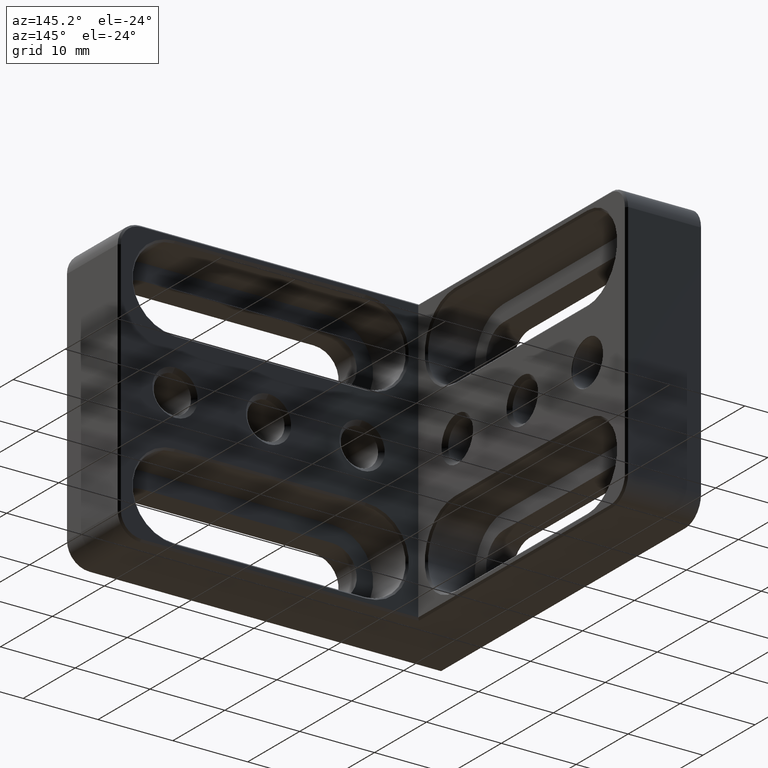
[diagram: clean part render]
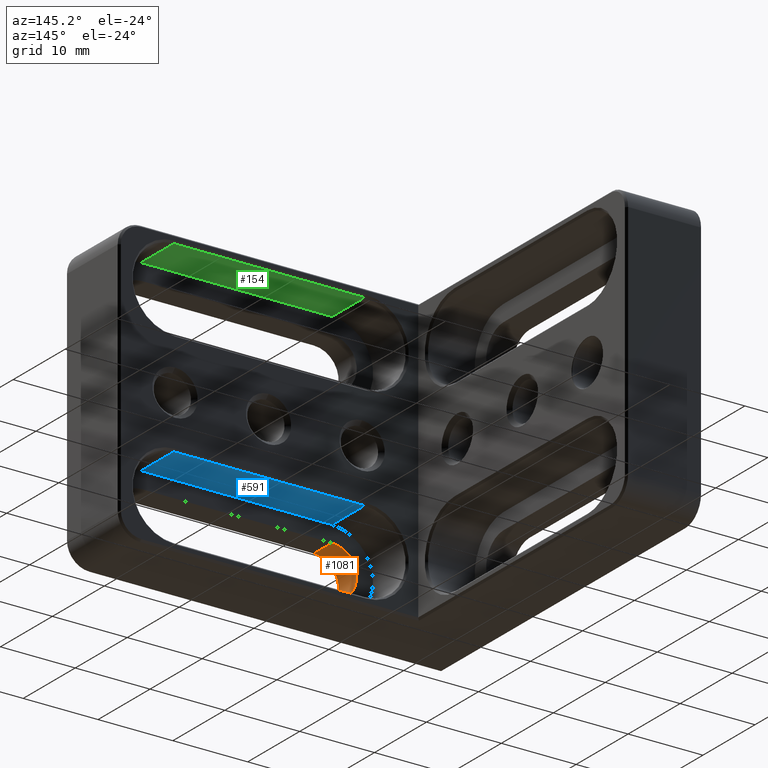
[diagram: same view with three faces highlighted in distinct colors, each labeled with its STEP entity id]
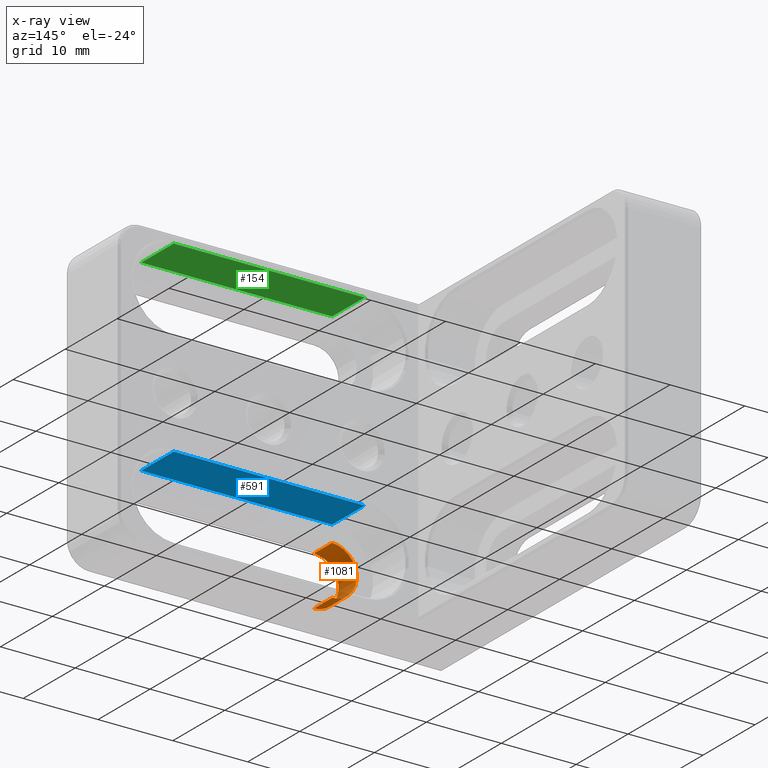
[diagram: x-ray of the same camera — body ghosted, the three highlighted faces saturated]
A machine part, auxiliary view with three faces highlighted in distinct colors.
The next image is the same camera in x-ray (body ghosted, the three faces saturated) — at least one of them is partly hidden behind the body in this view.
Their STEP definitions:

[orange] entity #1081 — the highlighted cylindrical surface (edge-blend (fillet) strip) has radius 3.3 mm, axis along (-0, 1, -0).
#16 = DIRECTION ( 'NONE',  ( -0.000000000000000000, 1.000000000000000000, -0.000000000000000000 ) ) ;
#42 = CYLINDRICAL_SURFACE ( 'NONE', #1276, 3.300000000000000711 ) ;
#242 = CARTESIAN_POINT ( 'NONE',  ( -8.000000000000000000, 3.500000000000000444, -12.50000000000000000 ) ) ;
#333 = DIRECTION ( 'NONE',  ( 0.000000000000000000, 0.000000000000000000, 1.000000000000000000 ) ) ;
#389 = VECTOR ( 'NONE', #16, 1000.000000000000000 ) ;
#417 = VERTEX_POINT ( 'NONE', #722 ) ;
#418 = CARTESIAN_POINT ( 'NONE',  ( -8.000000000000000000, 3.500000000000000444, -15.80000000000000071 ) ) ;
#439 = DIRECTION ( 'NONE',  ( -0.000000000000000000, 1.000000000000000000, -0.000000000000000000 ) ) ;
#467 = ORIENTED_EDGE ( 'NONE', *, *, #831, .F. ) ;
#522 = VERTEX_POINT ( 'NONE', #2446 ) ;
#622 = VERTEX_POINT ( 'NONE', #418 ) ;
#722 = CARTESIAN_POINT ( 'NONE',  ( -8.000000000000000000, -8.673617379884035472E-16, -9.199999999999999289 ) ) ;
#831 = EDGE_CURVE ( 'NONE', #522, #417, #1200, .T. ) ;
#1044 = VECTOR ( 'NONE', #2556, 1000.000000000000000 ) ;
#1081 = ADVANCED_FACE ( 'NONE', ( #1433 ), #42, .F. ) ;
#1090 = DIRECTION ( 'NONE',  ( 0.000000000000000000, 0.000000000000000000, 1.000000000000000000 ) ) ;
#1099 = ORIENTED_EDGE ( 'NONE', *, *, #1183, .T. ) ;
#1183 = EDGE_CURVE ( 'NONE', #522, #622, #1852, .T. ) ;
#1197 = AXIS2_PLACEMENT_3D ( 'NONE', #242, #2033, #2416 ) ;
#1200 = CIRCLE ( 'NONE', #2340, 3.300000000000000711 ) ;
#1276 = AXIS2_PLACEMENT_3D ( 'NONE', #2442, #439, #1090 ) ;
#1322 = LINE ( 'NONE', #2133, #1044 ) ;
#1433 = FACE_OUTER_BOUND ( 'NONE', #2349, .T. ) ;
#1475 = EDGE_CURVE ( 'NONE', #417, #1684, #1322, .T. ) ;
#1517 = DIRECTION ( 'NONE',  ( 0.000000000000000000, 1.000000000000000000, 0.000000000000000000 ) ) ;
#1639 = CARTESIAN_POINT ( 'NONE',  ( -8.000000000000000000, 3.500000000000000444, -9.199999999999999289 ) ) ;
#1684 = VERTEX_POINT ( 'NONE', #1639 ) ;
#1727 = ORIENTED_EDGE ( 'NONE', *, *, #1939, .T. ) ;
#1852 = LINE ( 'NONE', #2097, #389 ) ;
#1871 = ORIENTED_EDGE ( 'NONE', *, *, #1475, .F. ) ;
#1939 = EDGE_CURVE ( 'NONE', #622, #1684, #2300, .T. ) ;
#2033 = DIRECTION ( 'NONE',  ( 0.000000000000000000, 1.000000000000000000, 0.000000000000000000 ) ) ;
#2097 = CARTESIAN_POINT ( 'NONE',  ( -8.000000000000000000, -2.999999999999999112, -15.80000000000000071 ) ) ;
#2133 = CARTESIAN_POINT ( 'NONE',  ( -8.000000000000000000, -2.999999999999999112, -9.199999999999999289 ) ) ;
#2300 = CIRCLE ( 'NONE', #1197, 3.300000000000000711 ) ;
#2340 = AXIS2_PLACEMENT_3D ( 'NONE', #2562, #1517, #333 ) ;
#2349 = EDGE_LOOP ( 'NONE', ( #1099, #1727, #1871, #467 ) ) ;
#2416 = DIRECTION ( 'NONE',  ( 0.000000000000000000, 0.000000000000000000, 1.000000000000000000 ) ) ;
#2442 = CARTESIAN_POINT ( 'NONE',  ( -8.000000000000000000, -2.999999999999999112, -12.50000000000000000 ) ) ;
#2446 = CARTESIAN_POINT ( 'NONE',  ( -8.000000000000000000, -8.673617379884035472E-16, -15.80000000000000071 ) ) ;
#2556 = DIRECTION ( 'NONE',  ( -0.000000000000000000, 1.000000000000000000, -0.000000000000000000 ) ) ;
#2562 = CARTESIAN_POINT ( 'NONE',  ( -8.000000000000000000, 0.000000000000000000, -12.50000000000000000 ) ) ;

[blue] entity #591 — the highlighted planar face has unit normal (-0, 0, 1).
#134 = LINE ( 'NONE', #2153, #857 ) ;
#162 = CARTESIAN_POINT ( 'NONE',  ( 17.49999999999999645, 3.500000000000000444, -7.000000000000002665 ) ) ;
#255 = CARTESIAN_POINT ( 'NONE',  ( -8.000000000000000000, 9.750000000000005329, -7.000000000000002665 ) ) ;
#365 = DIRECTION ( 'NONE',  ( -0.000000000000000000, 0.000000000000000000, 1.000000000000000000 ) ) ;
#407 = PLANE ( 'NONE',  #1667 ) ;
#497 = VECTOR ( 'NONE', #2420, 1000.000000000000000 ) ;
#515 = DIRECTION ( 'NONE',  ( -0.000000000000000000, 1.000000000000000000, -0.000000000000000000 ) ) ;
#537 = EDGE_CURVE ( 'NONE', #869, #561, #773, .T. ) ;
#561 = VERTEX_POINT ( 'NONE', #162 ) ;
#591 = ADVANCED_FACE ( 'NONE', ( #1013 ), #407, .F. ) ;
#653 = VERTEX_POINT ( 'NONE', #255 ) ;
#698 = LINE ( 'NONE', #1299, #1474 ) ;
#773 = LINE ( 'NONE', #2607, #497 ) ;
#857 = VECTOR ( 'NONE', #2327, 1000.000000000000000 ) ;
#863 = EDGE_CURVE ( 'NONE', #653, #1209, #134, .T. ) ;
#869 = VERTEX_POINT ( 'NONE', #2112 ) ;
#956 = ORIENTED_EDGE ( 'NONE', *, *, #863, .T. ) ;
#1013 = FACE_OUTER_BOUND ( 'NONE', #1978, .T. ) ;
#1209 = VERTEX_POINT ( 'NONE', #1637 ) ;
#1243 = EDGE_CURVE ( 'NONE', #869, #653, #698, .T. ) ;
#1260 = VECTOR ( 'NONE', #515, 1000.000000000000000 ) ;
#1299 = CARTESIAN_POINT ( 'NONE',  ( -8.000000000000000000, 3.500000000000000444, -7.000000000000002665 ) ) ;
#1365 = CARTESIAN_POINT ( 'NONE',  ( 17.49999999999999645, 3.500000000000000444, -7.000000000000002665 ) ) ;
#1473 = ORIENTED_EDGE ( 'NONE', *, *, #1243, .T. ) ;
#1474 = VECTOR ( 'NONE', #1910, 1000.000000000000000 ) ;
#1637 = CARTESIAN_POINT ( 'NONE',  ( 17.49999999999999645, 9.750000000000005329, -7.000000000000002665 ) ) ;
#1667 = AXIS2_PLACEMENT_3D ( 'NONE', #1832, #365, #2212 ) ;
#1741 = ORIENTED_EDGE ( 'NONE', *, *, #537, .F. ) ;
#1832 = CARTESIAN_POINT ( 'NONE',  ( -8.000000000000000000, 3.500000000000000444, -7.000000000000002665 ) ) ;
#1910 = DIRECTION ( 'NONE',  ( -0.000000000000000000, 1.000000000000000000, -0.000000000000000000 ) ) ;
#1978 = EDGE_LOOP ( 'NONE', ( #1473, #956, #2285, #1741 ) ) ;
#2112 = CARTESIAN_POINT ( 'NONE',  ( -8.000000000000000000, 3.500000000000000444, -7.000000000000002665 ) ) ;
#2153 = CARTESIAN_POINT ( 'NONE',  ( 17.49999999999999645, 9.750000000000007105, -7.000000000000002665 ) ) ;
#2212 = DIRECTION ( 'NONE',  ( 1.000000000000000000, 0.000000000000000000, 0.000000000000000000 ) ) ;
#2248 = EDGE_CURVE ( 'NONE', #561, #1209, #2339, .T. ) ;
#2285 = ORIENTED_EDGE ( 'NONE', *, *, #2248, .F. ) ;
#2327 = DIRECTION ( 'NONE',  ( 1.000000000000000000, 0.000000000000000000, 0.000000000000000000 ) ) ;
#2339 = LINE ( 'NONE', #1365, #1260 ) ;
#2420 = DIRECTION ( 'NONE',  ( 1.000000000000000000, 0.000000000000000000, 0.000000000000000000 ) ) ;
#2607 = CARTESIAN_POINT ( 'NONE',  ( -8.000000000000000000, 3.500000000000000444, -7.000000000000002665 ) ) ;

[green] entity #154 — the highlighted planar face has unit normal (0, 0, -1).
#4 = CARTESIAN_POINT ( 'NONE',  ( 17.49999999999999645, 9.749999999999998224, 18.00000000000000000 ) ) ;
#9 = VECTOR ( 'NONE', #718, 1000.000000000000000 ) ;
#23 = DIRECTION ( 'NONE',  ( 0.000000000000000000, 0.000000000000000000, -1.000000000000000000 ) ) ;
#85 = VERTEX_POINT ( 'NONE', #1593 ) ;
#154 = ADVANCED_FACE ( 'NONE', ( #578 ), #1607, .T. ) ;
#229 = VERTEX_POINT ( 'NONE', #1685 ) ;
#317 = VECTOR ( 'NONE', #1785, 1000.000000000000000 ) ;
#399 = DIRECTION ( 'NONE',  ( -1.000000000000000000, 0.000000000000000000, -0.000000000000000000 ) ) ;
#578 = FACE_OUTER_BOUND ( 'NONE', #1270, .T. ) ;
#655 = EDGE_CURVE ( 'NONE', #229, #85, #1039, .T. ) ;
#718 = DIRECTION ( 'NONE',  ( -0.000000000000000000, 1.000000000000000000, -0.000000000000000000 ) ) ;
#798 = CARTESIAN_POINT ( 'NONE',  ( 17.49999999999999645, 3.500000000000000444, 18.00000000000000000 ) ) ;
#845 = AXIS2_PLACEMENT_3D ( 'NONE', #1402, #23, #399 ) ;
#895 = LINE ( 'NONE', #1897, #1173 ) ;
#911 = ORIENTED_EDGE ( 'NONE', *, *, #2453, .T. ) ;
#963 = VERTEX_POINT ( 'NONE', #4 ) ;
#994 = LINE ( 'NONE', #1813, #317 ) ;
#1039 = LINE ( 'NONE', #1657, #2260 ) ;
#1041 = EDGE_CURVE ( 'NONE', #85, #963, #994, .T. ) ;
#1056 = DIRECTION ( 'NONE',  ( -0.000000000000000000, 1.000000000000000000, -0.000000000000000000 ) ) ;
#1173 = VECTOR ( 'NONE', #2555, 1000.000000000000000 ) ;
#1270 = EDGE_LOOP ( 'NONE', ( #2022, #2452, #1518, #911 ) ) ;
#1402 = CARTESIAN_POINT ( 'NONE',  ( -8.000000000000000000, 3.500000000000000444, 18.00000000000000000 ) ) ;
#1415 = CARTESIAN_POINT ( 'NONE',  ( 17.49999999999999645, 3.500000000000000444, 18.00000000000000000 ) ) ;
#1518 = ORIENTED_EDGE ( 'NONE', *, *, #2152, .F. ) ;
#1593 = CARTESIAN_POINT ( 'NONE',  ( -8.000000000000000000, 9.749999999999998224, 18.00000000000000000 ) ) ;
#1607 = PLANE ( 'NONE',  #845 ) ;
#1657 = CARTESIAN_POINT ( 'NONE',  ( -8.000000000000000000, 3.500000000000000444, 18.00000000000000000 ) ) ;
#1685 = CARTESIAN_POINT ( 'NONE',  ( -8.000000000000000000, 3.500000000000000444, 18.00000000000000000 ) ) ;
#1785 = DIRECTION ( 'NONE',  ( 1.000000000000000000, 0.000000000000000000, 0.000000000000000000 ) ) ;
#1813 = CARTESIAN_POINT ( 'NONE',  ( -8.000000000000000000, 9.750000000000000000, 18.00000000000000000 ) ) ;
#1897 = CARTESIAN_POINT ( 'NONE',  ( -8.000000000000000000, 3.500000000000000444, 18.00000000000000000 ) ) ;
#1931 = VERTEX_POINT ( 'NONE', #798 ) ;
#2022 = ORIENTED_EDGE ( 'NONE', *, *, #655, .T. ) ;
#2152 = EDGE_CURVE ( 'NONE', #1931, #963, #2627, .T. ) ;
#2260 = VECTOR ( 'NONE', #1056, 1000.000000000000000 ) ;
#2452 = ORIENTED_EDGE ( 'NONE', *, *, #1041, .T. ) ;
#2453 = EDGE_CURVE ( 'NONE', #1931, #229, #895, .T. ) ;
#2555 = DIRECTION ( 'NONE',  ( -1.000000000000000000, -0.000000000000000000, 0.000000000000000000 ) ) ;
#2627 = LINE ( 'NONE', #1415, #9 ) ;